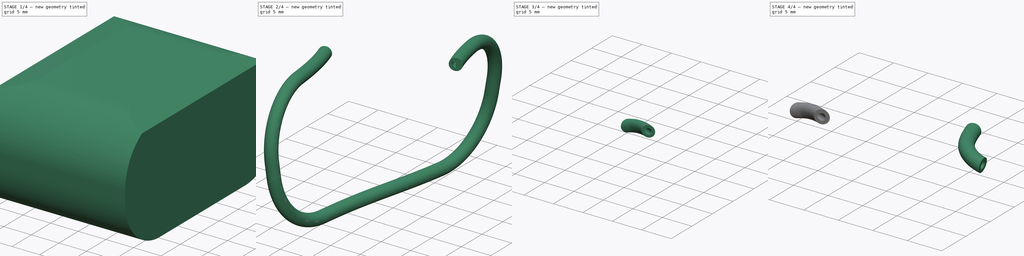
[diagram: build sequence overview — one tinted view per stage of 4, left to right]
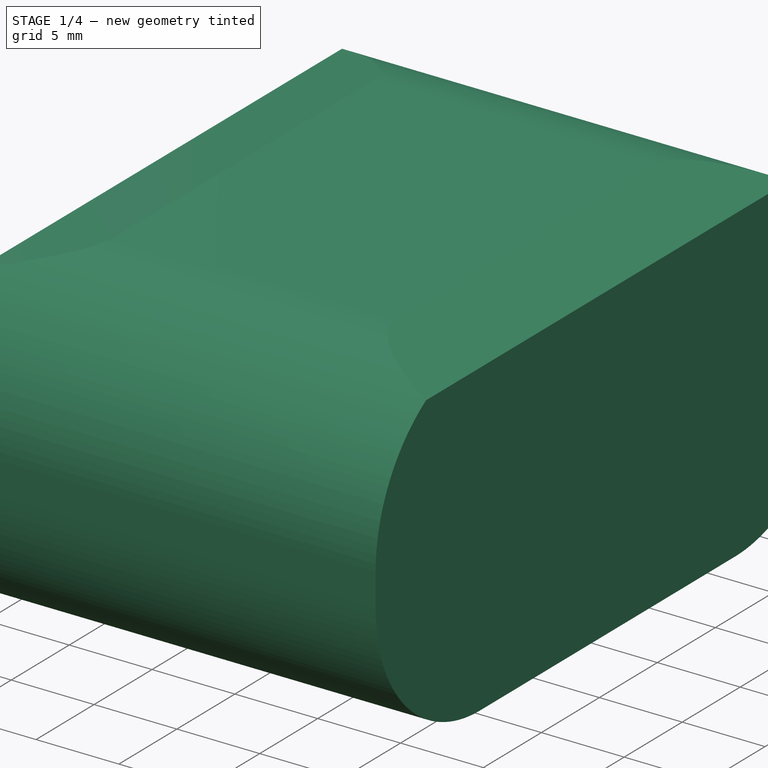
[diagram: stage 1 of 4 — iso view after this stage's code; geometry added in this stage tinted green]
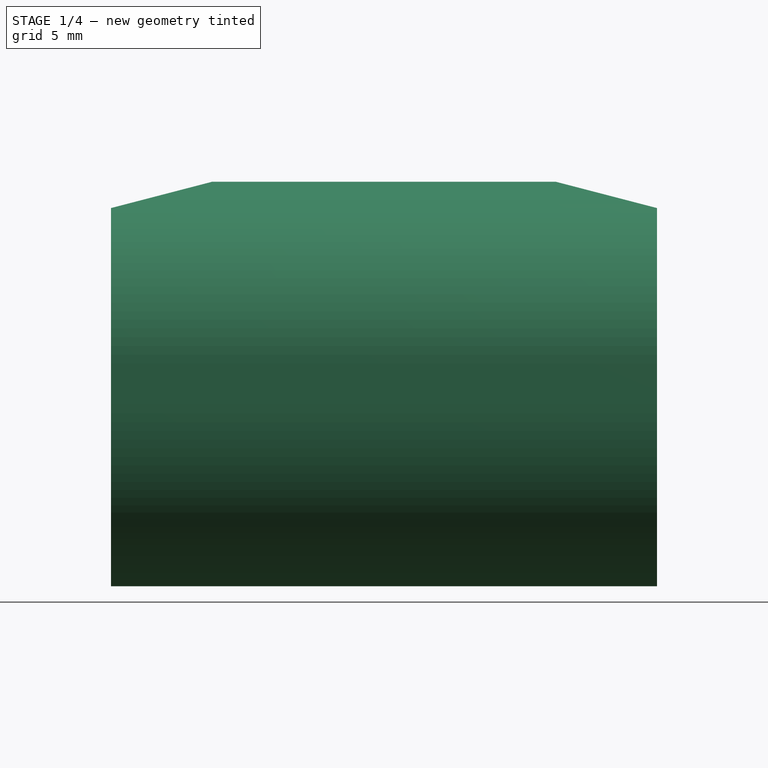
[diagram: stage 1 of 4 — front view after this stage's code; geometry added in this stage tinted green]
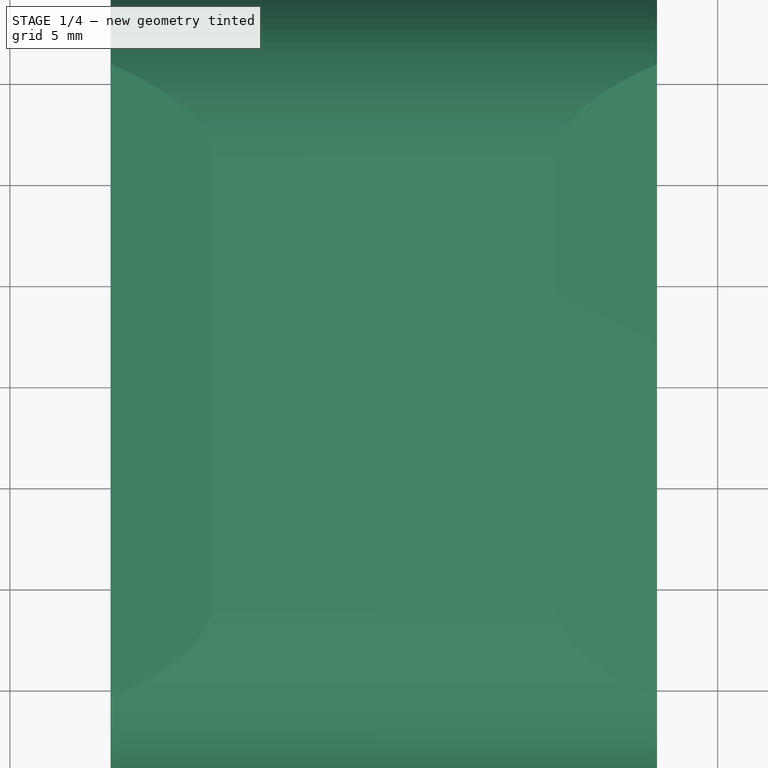
[diagram: stage 1 of 4 — top view after this stage's code; geometry added in this stage tinted green]
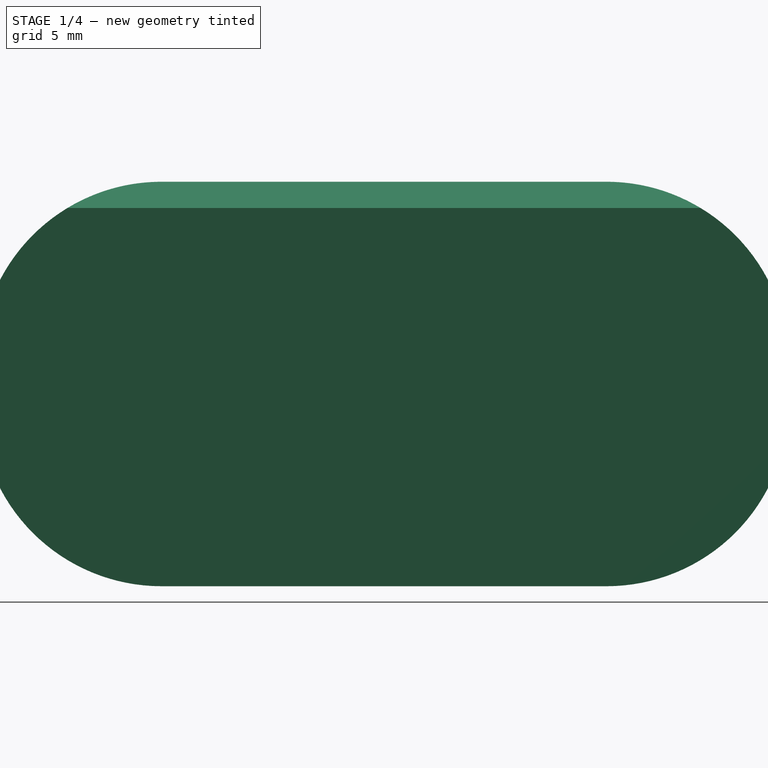
[diagram: stage 1 of 4 — right view after this stage's code; geometry added in this stage tinted green]
FCSTD DOCUMENT  (FreeCAD 0.19R24291 (Git))
Label: vacuum_pip_ell04
License: All rights reserved
LicenseURL: http://en.wikipedia.org/wiki/All_rights_reserved
objects: Part::Sweep×7, Sketcher::SketchObject×7, Part::Cut×3, Part::Circle×2, Part::Box×1, Part::Chamfer×1, Part::Fillet×1, Part::Helix×1, Part::Line×1, Part::MultiCommon×1
note: 25 computed .brp shape members not serialized (recipe doc carries the construction recipe); baked Part::Feature solids carry a one-line shape summary decoded from their .brp

FEATURE [Part::Box] Box  label="Cube"
  AttacherType = Attacher::AttachEngine3D
  Height = 20
  Length = 27
  Width = 40
FEATURE [Part::Chamfer] Chamfer
  Base = -> Box
  Edges = 2 edges: [Edge2 r1=1.3 r2=5,Edge6 r1=1.3 r2=5]
FEATURE [Part::Fillet] Fillet
  Base = -> Chamfer
  Edges = 4 edges r=9: [Edge6,Edge8,Edge12,Edge15]
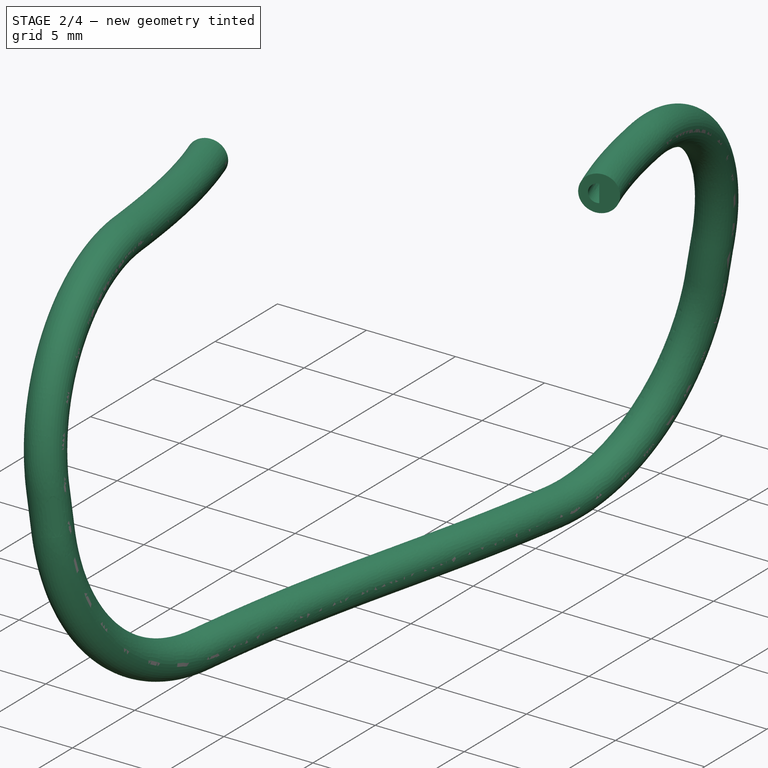
[diagram: stage 2 of 4 — iso view after this stage's code; geometry added in this stage tinted green]
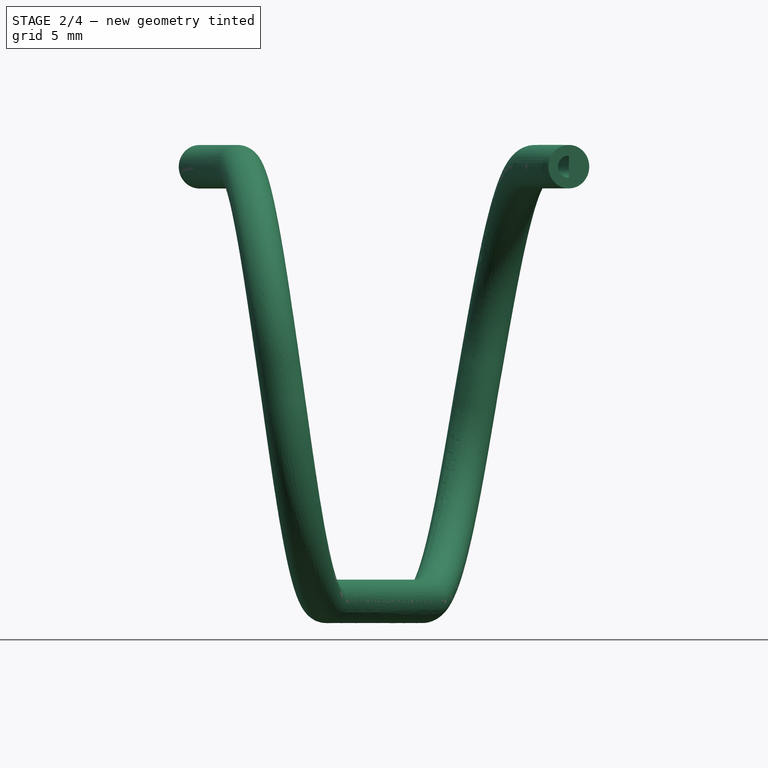
[diagram: stage 2 of 4 — front view after this stage's code; geometry added in this stage tinted green]
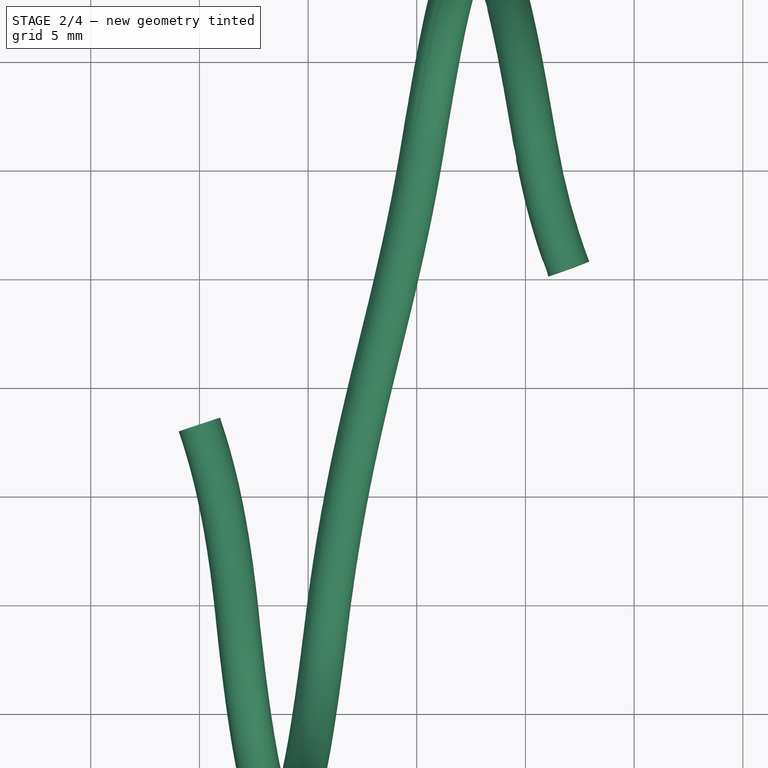
[diagram: stage 2 of 4 — top view after this stage's code; geometry added in this stage tinted green]
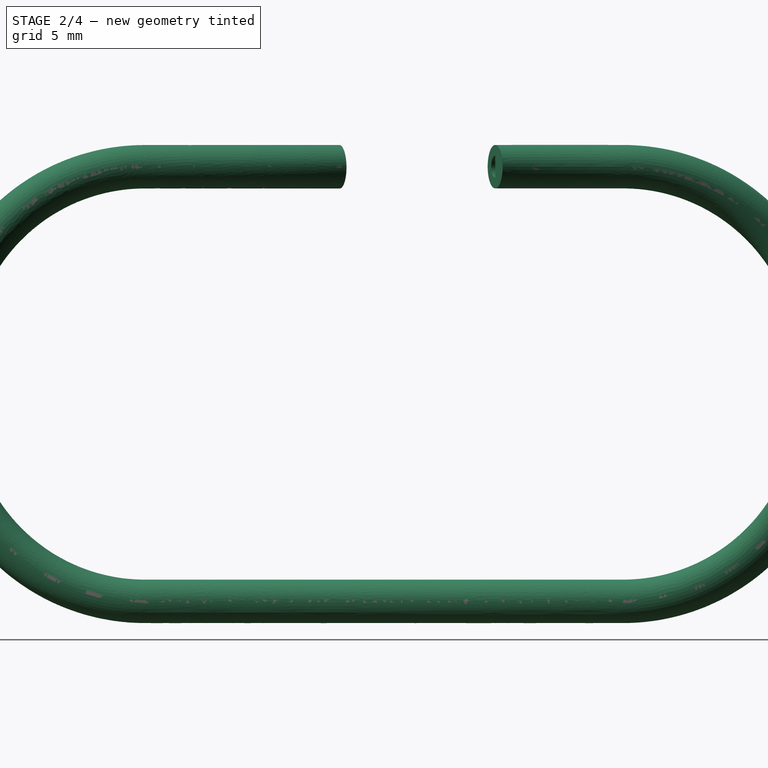
[diagram: stage 2 of 4 — right view after this stage's code; geometry added in this stage tinted green]
FEATURE [Part::Helix] Helix
  Angle = 0
  AttacherType = Attacher::AttachEngine3D
  Height = 17
  LocalCoord = 0
  Pitch = 20
  Radius = 25
  Style = 1
FEATURE [Part::Line] Line
  AttacherType = Attacher::AttachEngine3D
  X1 = 0
  X2 = 25
  Y1 = 0
  Y2 = 0
  Z1 = 0
  Z2 = 0
FEATURE [Part::Sweep] Sweep
  Frenet = true
  Placement = pos=(5,22,13) rot=(0.694747,-0.186157,0.694747;3.50969rad)
  Sections = -> [Line]
  Solid = false
  Spine = -> Helix [Edge1]
  Transition = 1
FEATURE [Part::MultiCommon] Common
  Shapes = -> [Sweep,Fillet]
FEATURE [Part::Circle] Circle  label="shell"
  Angle0 = 0
  Angle1 = 360
  AttacherType = Attacher::AttachEngine3D
  Placement = pos=(21.9653,25.197,20) rot=(0.970288,0.171088,0.171088;1.60095rad)
  Radius = 1
FEATURE [Part::Circle] Circle001  label="hole"
  Angle0 = 0
  Angle1 = 360
  AttacherType = Attacher::AttachEngine3D
  Placement = pos=(21.9316,25.1879,20) rot=(0.970288,0.171088,0.171088;1.60095rad)
  Radius = 0.5
FEATURE [Part::Sweep] Sweep001
  Frenet = false
  Sections = -> [Circle]
  Solid = true
  Spine = -> Common [Edge3,Edge4,Edge5,Edge6,Edge7,Edge8,Edge9,Edge10,Edge11]
  Transition = 1
FEATURE [Part::Sweep] Sweep002
  Frenet = false
  Sections = -> [Circle001]
  Solid = true
  Spine = -> Common [Edge3,Edge4,Edge5,Edge6,Edge7,Edge8,Edge9,Edge10,Edge11]
  Transition = 1
FEATURE [Part::Cut] Cut
  Base = -> Sweep001
  Tool = -> Sweep002
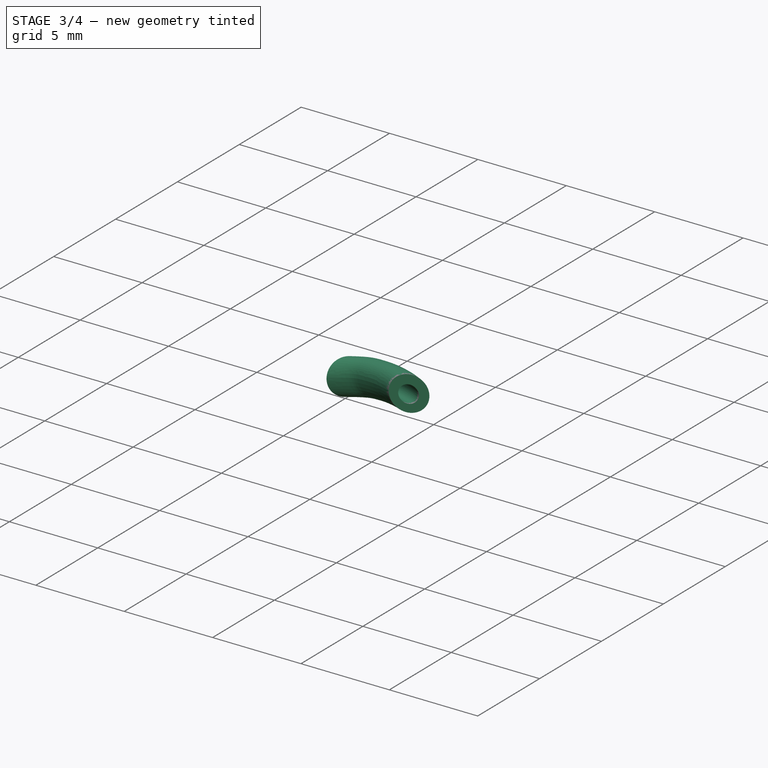
[diagram: stage 3 of 4 — iso view after this stage's code; geometry added in this stage tinted green]
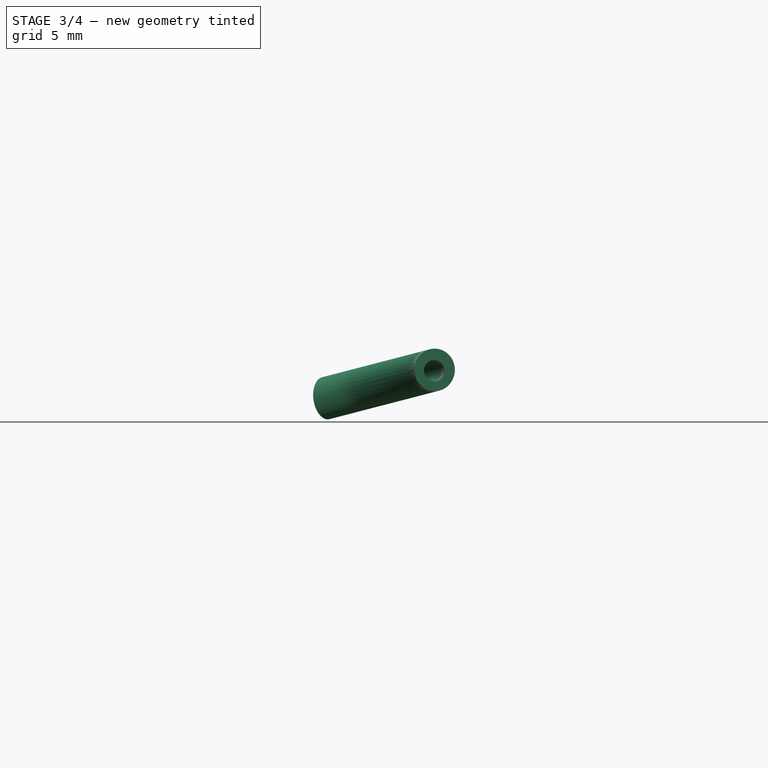
[diagram: stage 3 of 4 — front view after this stage's code; geometry added in this stage tinted green]
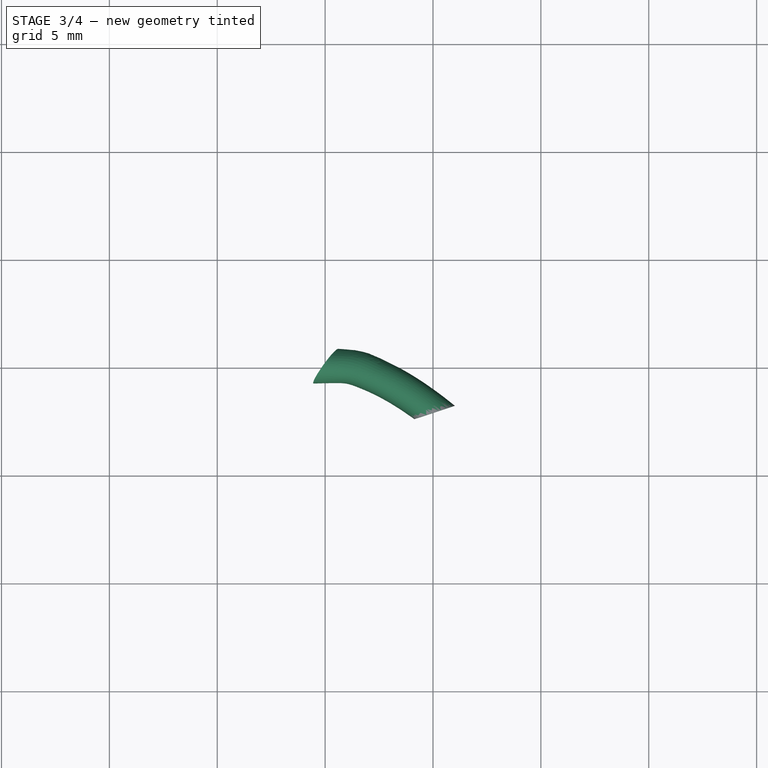
[diagram: stage 3 of 4 — top view after this stage's code; geometry added in this stage tinted green]
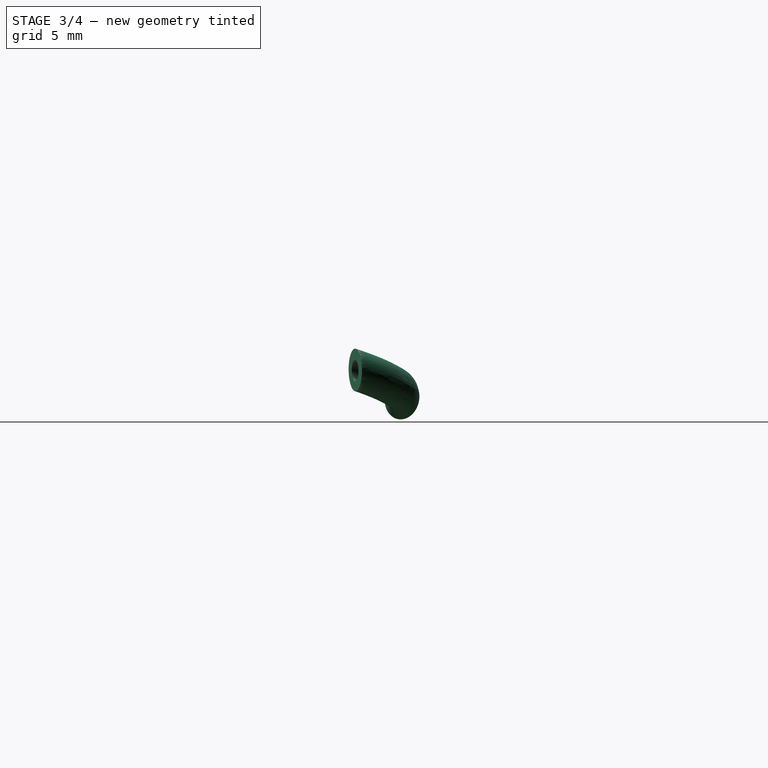
[diagram: stage 3 of 4 — right view after this stage's code; geometry added in this stage tinted green]
FEATURE [Sketcher::SketchObject] Sketch005
  FullyConstrained = false
  MapMode = 5
  Placement = pos=(-4.9489,14.8165,0.135014) rot=(-0.114725,0.69923,0.705631;3.36799rad)
  Support = -> [Cut]
  sketch-geometry (1):
    g0: Circle CenterX=-10.4948 CenterY=19.8376 CenterZ=0 NormalX=0 NormalY=0 NormalZ=1 AngleXU=0 Radius=0.987703
FEATURE [Sketcher::SketchObject] Sketch006
  FullyConstrained = false
  MapMode = 5
  Placement = pos=(-4.9489,14.8165,0.135014) rot=(-0.114725,0.69923,0.705631;3.36799rad)
  Support = -> [Cut]
  sketch-geometry (1):
    g0: Circle CenterX=-10.4723 CenterY=19.8042 CenterZ=0 NormalX=0 NormalY=0 NormalZ=1 AngleXU=0 Radius=0.498784
FEATURE [Part::Sweep] Sweep005
  Frenet = false
  Sections = -> [Sketch006]
  Solid = true
  Spine = -> Sketch002 [Edge1]
  Transition = 1
FEATURE [Part::Sweep] Sweep006
  Frenet = false
  Sections = -> [Sketch005]
  Solid = true
  Spine = -> Sketch002 [Edge1]
  Transition = 1
FEATURE [Part::Cut] Cut002
  Base = -> Sweep006
  Tool = -> Sweep005
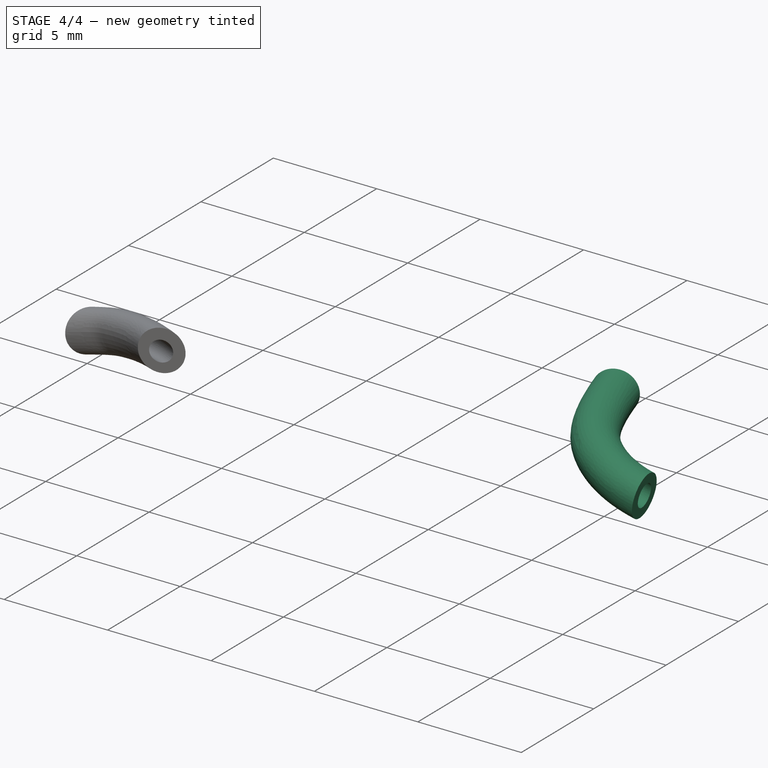
[diagram: stage 4 of 4 — iso view after this stage's code; geometry added in this stage tinted green]
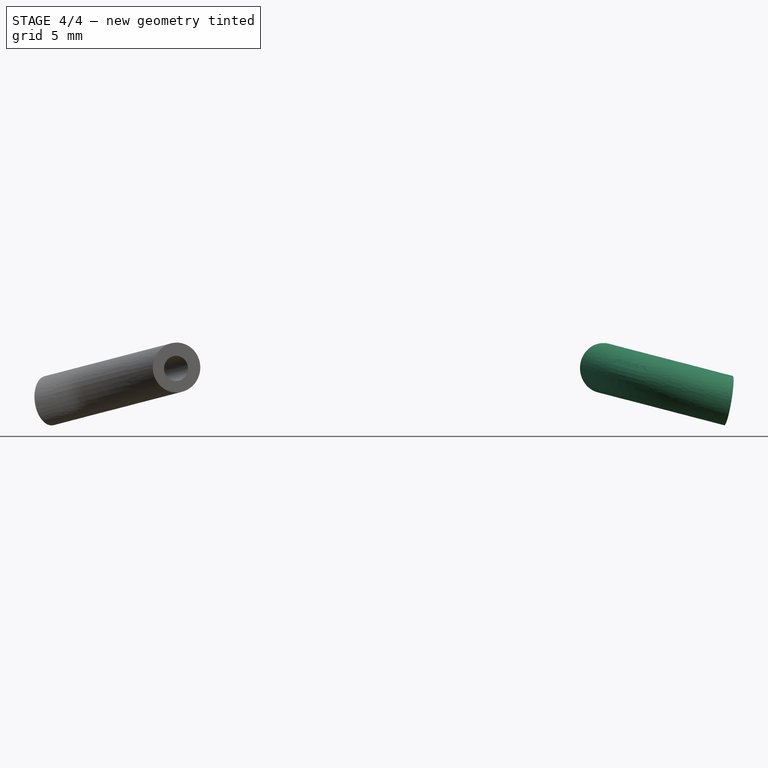
[diagram: stage 4 of 4 — front view after this stage's code; geometry added in this stage tinted green]
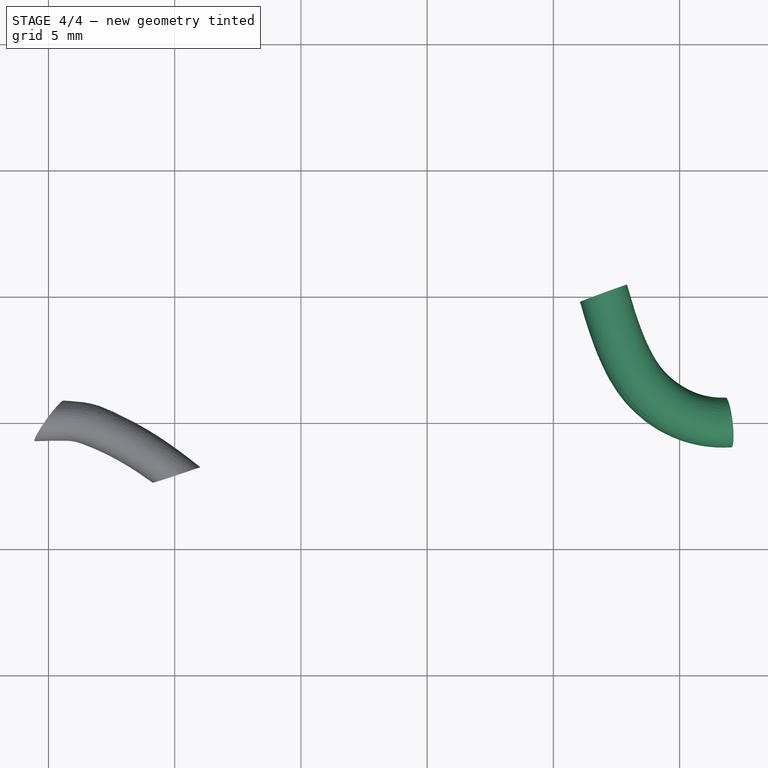
[diagram: stage 4 of 4 — top view after this stage's code; geometry added in this stage tinted green]
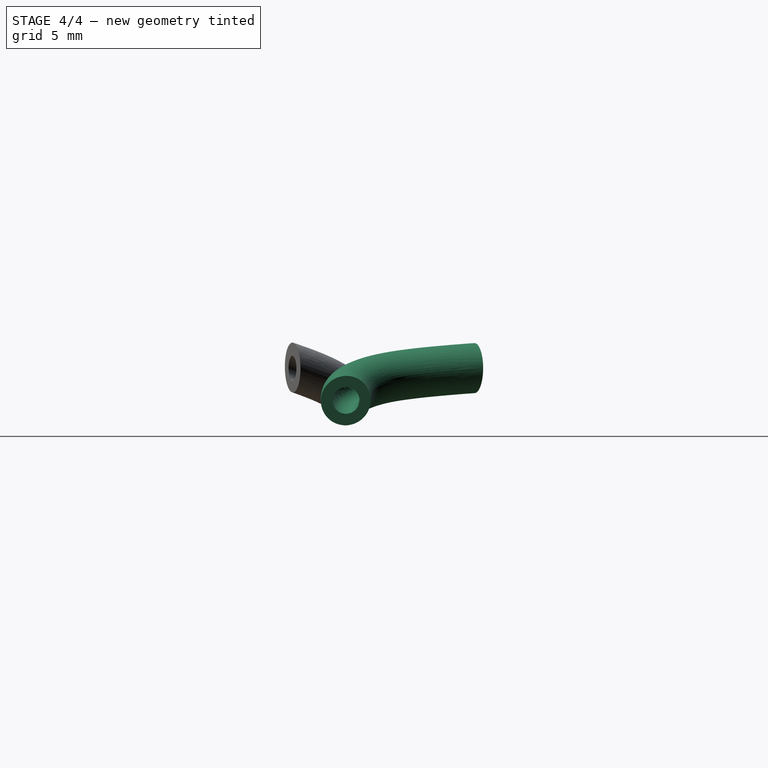
[diagram: stage 4 of 4 — right view after this stage's code; geometry added in this stage tinted green]
FEATURE [Sketcher::SketchObject] Sketch
  ExternalGeometry = -> [Fillet]
  FullyConstrained = false
  MapMode = 5
  Placement = pos=(0,0,20) rot=(0,0,1;0rad)
  Support = -> [Fillet]
  sketch-geometry (1):
    g0: LineSegment StartX=36.8154 StartY=20 StartZ=0 EndX=-8.74624 EndY=20 EndZ=0
  constraints (1):
    c: Symmetric(g-3,g-4,g0)
FEATURE [Sketcher::SketchObject] Sketch001
  FullyConstrained = false
  MapMode = 5
  Placement = pos=(6.26377,5e-16,24.0914) rot=(0,1,0;0.254368rad)
  Support = -> [Fillet]
  sketch-geometry (9):
    g0-g4: Circle x5 (B-spline internal-alignment scaffolding for g5; pole/knot coordinates omitted)
    g5: BSplineCurve PolesCount=5 KnotsCount=3 Degree=3 IsPeriodic=0
    g6: GeomPoint X=16.2424 Y=25.1096 Z=0
    g7: GeomPoint X=18.4708 Y=20.9119 Z=0
    g8: GeomPoint X=21.3626 Y=20.0102 Z=0
  constraints (6):
    c: Weight(g0) = 1
    c: Equal(g0, g1-g4) x4
    c: InternalAlignment(g0-g4 -> g5) x5
    c: InternalAlignment(g6,g5)
    c: InternalAlignment(g7,g5)
    c: InternalAlignment(g8,g5)
FEATURE [Sketcher::SketchObject] Sketch002
  FullyConstrained = false
  MapMode = 5
  Placement = pos=(-4.55414,4e-16,17.5159) rot=(0,-1,0;0.254368rad)
  Support = -> [Fillet]
  sketch-geometry (9):
    g0-g4: Circle x5 (B-spline internal-alignment scaffolding for g5; pole/knot coordinates omitted)
    g5: BSplineCurve PolesCount=5 KnotsCount=3 Degree=3 IsPeriodic=0
    g6: GeomPoint X=9.82808 Y=17.8695 Z=0
    g7: GeomPoint X=6.9057 Y=19.5858 Z=0
    g8: GeomPoint X=4.66366 Y=19.9724 Z=0
  constraints (6):
    c: Weight(g0) = 1
    c: Equal(g0, g1-g4) x4
    c: InternalAlignment(g0-g4 -> g5) x5
    c: InternalAlignment(g6,g5)
    c: InternalAlignment(g7,g5)
    c: InternalAlignment(g8,g5)
FEATURE [Sketcher::SketchObject] Sketch003
  FullyConstrained = false
  MapMode = 5
  Placement = pos=(-5.51324,15.0127,-3.4e-15) rot=(0.969807,0.172445,0.172445;1.60145rad)
  Support = -> [Cut]
  sketch-geometry (1):
    g0: Circle CenterX=29.2936 CenterY=19.9979 CenterZ=0 NormalX=0 NormalY=0 NormalZ=1 AngleXU=0 Radius=0.991529
FEATURE [Part::Sweep] Sweep003
  Frenet = false
  Sections = -> [Sketch003]
  Solid = true
  Spine = -> Sketch001 [Edge1]
  Transition = 1
FEATURE [Sketcher::SketchObject] Sketch004
  FullyConstrained = false
  MapMode = 5
  Placement = pos=(-5.51324,15.0127,-3.4e-15) rot=(0.969807,0.172445,0.172445;1.60145rad)
  Support = -> [Cut]
  sketch-geometry (1):
    g0: Circle CenterX=29.3059 CenterY=20.0002 CenterZ=0 NormalX=0 NormalY=0 NormalZ=1 AngleXU=0 Radius=0.535094
FEATURE [Part::Sweep] Sweep004
  Frenet = false
  Sections = -> [Sketch004]
  Solid = true
  Spine = -> Sketch001 [Edge1]
  Transition = 1
FEATURE [Part::Cut] Cut001
  Base = -> Sweep003
  Tool = -> Sweep004
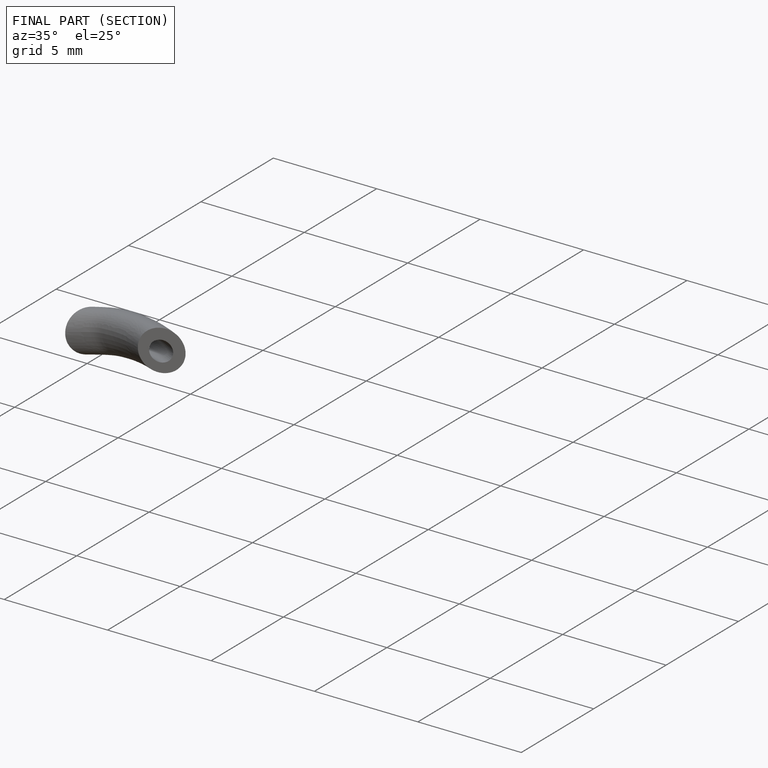
[diagram: finished part — half-section view (interior)]
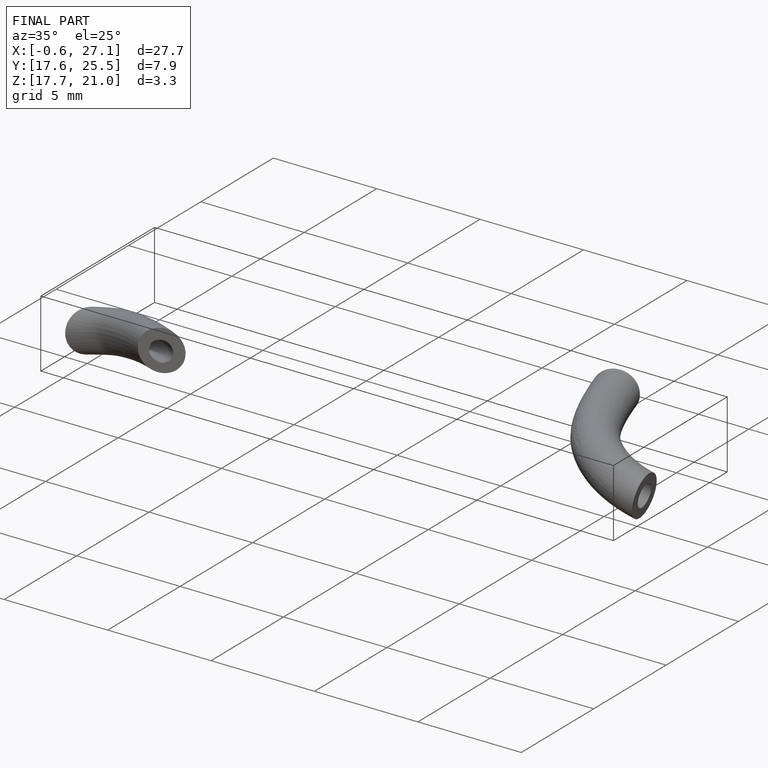
[diagram: finished part — iso view with bounding-box wireframe]
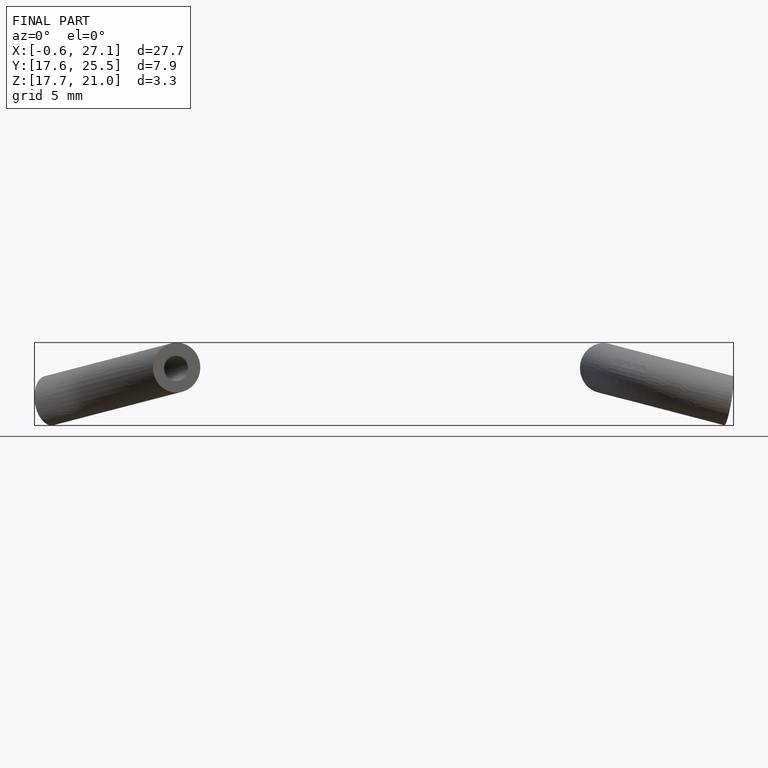
[diagram: finished part — front view with bounding-box wireframe]
